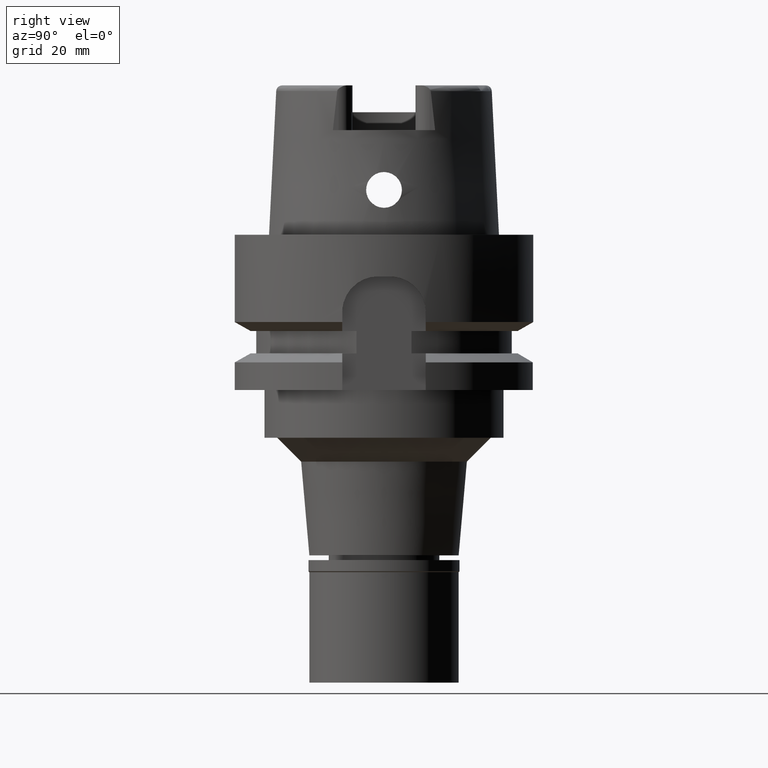
[diagram: clean part render]
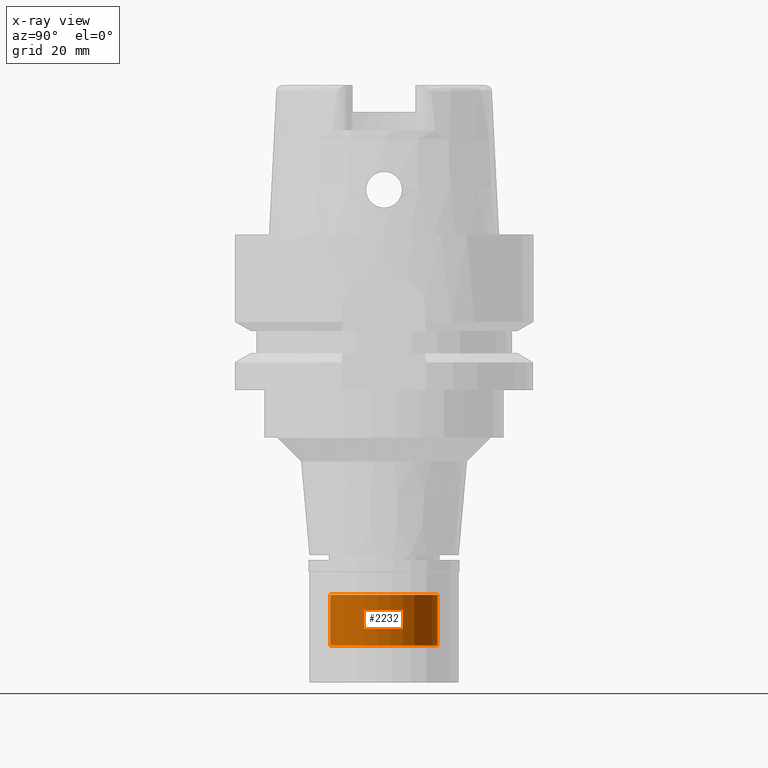
[diagram: x-ray — body ghosted, one internal face saturated and labeled with its STEP entity id]
A machine part, right view, then the same camera in x-ray: the body is ghosted and one INTERNAL B-rep face — a face not visible from any outside direction — is saturated and labeled: STEP entity #2232.
In plain terms, the highlighted cylindrical surface (partial cylindrical patch) has radius 9 mm, axis along (0, 0, 1).
Its self-contained STEP definition (entity closure, byte-faithful):
#12 = ORIENTED_EDGE ( 'NONE', *, *, #5284, .T. ) ;
#116 = CARTESIAN_POINT ( 'NONE',  ( 0.0000000000000000000, 0.0000000000000000000, -68.79999999999999716 ) ) ;
#175 = CIRCLE ( 'NONE', #3280, 9.000000000000000000 ) ;
#201 = VERTEX_POINT ( 'NONE', #940 ) ;
#225 = CARTESIAN_POINT ( 'NONE',  ( 0.0000000000000000000, 0.0000000000000000000, -73.48999999999999488 ) ) ;
#572 = EDGE_LOOP ( 'NONE', ( #1428, #12, #4918, #2892 ) ) ;
#576 = DIRECTION ( 'NONE',  ( 0.0000000000000000000, -1.000000000000000000, 0.0000000000000000000 ) ) ;
#698 = AXIS2_PLACEMENT_3D ( 'NONE', #225, #3977, #1137 ) ;
#940 = CARTESIAN_POINT ( 'NONE',  ( 0.0000000000000000000, 9.000000000000000000, -60.29999999999999716 ) ) ;
#974 = CARTESIAN_POINT ( 'NONE',  ( 0.0000000000000000000, 0.0000000000000000000, -60.29999999999999716 ) ) ;
#1137 = DIRECTION ( 'NONE',  ( 0.0000000000000000000, 1.000000000000000000, 0.0000000000000000000 ) ) ;
#1428 = ORIENTED_EDGE ( 'NONE', *, *, #2707, .T. ) ;
#2139 = VECTOR ( 'NONE', #4039, 1000.000000000000000 ) ;
#2232 = ADVANCED_FACE ( 'NONE', ( #4895 ), #3666, .T. ) ;
#2234 = DIRECTION ( 'NONE',  ( 0.0000000000000000000, 0.0000000000000000000, -1.000000000000000000 ) ) ;
#2266 = CARTESIAN_POINT ( 'NONE',  ( 0.0000000000000000000, -9.000000000000000000, -60.29999999999999716 ) ) ;
#2564 = DIRECTION ( 'NONE',  ( 0.0000000000000000000, 1.000000000000000000, 0.0000000000000000000 ) ) ;
#2707 = EDGE_CURVE ( 'NONE', #201, #3249, #5233, .T. ) ;
#2892 = ORIENTED_EDGE ( 'NONE', *, *, #2996, .F. ) ;
#2945 = CARTESIAN_POINT ( 'NONE',  ( 0.0000000000000000000, -9.000000000000000000, -68.79999999999999716 ) ) ;
#2996 = EDGE_CURVE ( 'NONE', #201, #5282, #3707, .T. ) ;
#3249 = VERTEX_POINT ( 'NONE', #3405 ) ;
#3280 = AXIS2_PLACEMENT_3D ( 'NONE', #116, #4832, #576 ) ;
#3405 = CARTESIAN_POINT ( 'NONE',  ( 0.0000000000000000000, -9.000000000000000000, -60.29999999999999716 ) ) ;
#3666 = CYLINDRICAL_SURFACE ( 'NONE', #698, 9.000000000000000000 ) ;
#3707 = LINE ( 'NONE', #5406, #3721 ) ;
#3721 = VECTOR ( 'NONE', #3742, 1000.000000000000000 ) ;
#3742 = DIRECTION ( 'NONE',  ( 0.0000000000000000000, 0.0000000000000000000, -1.000000000000000000 ) ) ;
#3977 = DIRECTION ( 'NONE',  ( 0.0000000000000000000, 0.0000000000000000000, 1.000000000000000000 ) ) ;
#4039 = DIRECTION ( 'NONE',  ( 0.0000000000000000000, 0.0000000000000000000, -1.000000000000000000 ) ) ;
#4381 = CARTESIAN_POINT ( 'NONE',  ( 0.0000000000000000000, 9.000000000000000000, -68.79999999999999716 ) ) ;
#4822 = LINE ( 'NONE', #2266, #2139 ) ;
#4832 = DIRECTION ( 'NONE',  ( 0.0000000000000000000, 0.0000000000000000000, 1.000000000000000000 ) ) ;
#4839 = EDGE_CURVE ( 'NONE', #5003, #5282, #175, .T. ) ;
#4876 = AXIS2_PLACEMENT_3D ( 'NONE', #974, #2234, #2564 ) ;
#4895 = FACE_OUTER_BOUND ( 'NONE', #572, .T. ) ;
#4918 = ORIENTED_EDGE ( 'NONE', *, *, #4839, .T. ) ;
#5003 = VERTEX_POINT ( 'NONE', #2945 ) ;
#5233 = CIRCLE ( 'NONE', #4876, 9.000000000000000000 ) ;
#5282 = VERTEX_POINT ( 'NONE', #4381 ) ;
#5284 = EDGE_CURVE ( 'NONE', #3249, #5003, #4822, .T. ) ;
#5406 = CARTESIAN_POINT ( 'NONE',  ( 0.0000000000000000000, 9.000000000000000000, -60.29999999999999716 ) ) ;